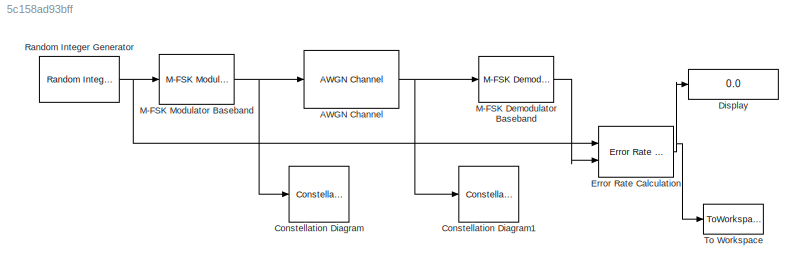
MODEL slx_5c158ad93bff
KIND model
CONFIG AbsTol = auto
CONFIG EnableMultiTasking = off
CONFIG FixedStep = auto
CONFIG MaxStep = auto
CONFIG MinStep = auto
CONFIG RelTol = 1e-3
CONFIG SampleTimeConstraint = Unconstrained
CONFIG Solver = VariableStepAuto
CONFIG SolverName = VariableStepAuto
CONFIG StartTime = 0.0
CONFIG StopTime = 10.0
BLOCK [Reference] AWGN Channel  REF=commchan3/AWGN
Channel
  Ports = [1, 1]
  SourceBlock = commchan3/AWGN\nChannel
  SourceProductBaseCode = CM
  SourceProductName = Communications System Toolbox
  SourceType = AWGN Channel
  UserDataPersistent = on
BLOCK [ConstellationDiagram] Constellation Diagram
  Ports = [1]
  ScopeSpecificationString = comm.scopes.ConstellationDiagramBlockCfg('CurrentConfiguration', extmgr.ConfigurationSet(extmgr.Configuration('Core','General UI',true),extmgr.Configuration('Core','Source UI',true),extmgr.Configuration('Sources','WiredSimulink',true),extmgr.Configuration('Visuals','Constellation',true,'AxesProperties',struct('Color',[0 0 0],'XColor',[0.686274509803922 0.686274509803922 0.686274509803922],'YColor'...<+711ch>
BLOCK [ConstellationDiagram] Constellation Diagram1
  Ports = [1]
  ScopeSpecificationString = comm.scopes.ConstellationDiagramBlockCfg('CurrentConfiguration', extmgr.ConfigurationSet(extmgr.Configuration('Core','General UI',true),extmgr.Configuration('Core','Source UI',true),extmgr.Configuration('Sources','WiredSimulink',true),extmgr.Configuration('Visuals','Constellation',true,'AxesProperties',struct('Color',[0 0 0],'XColor',[0.686274509803922 0.686274509803922 0.686274509803922],'YColor'...<+709ch>
BLOCK [Display] Display
  Decimation = 1
  Ports = [1]
BLOCK [Reference] Error Rate Calculation  REF=commsink2/Error Rate
Calculation
  Ports = [2, 1]
  SourceBlock = commsink2/Error Rate\nCalculation
  SourceProductBaseCode = CM
  SourceProductName = Communications System Toolbox
  SourceType = Error Rate Calculation
BLOCK [Reference] M-FSK Demodulator Baseband  REF=commdigbbndfm2/M-FSK
Demodulator
Baseband
  Ports = [1, 1]
  SourceBlock = commdigbbndfm2/M-FSK\nDemodulator\nBaseband
  SourceProductBaseCode = CM
  SourceProductName = Communications System Toolbox
  SourceType = M-FSK Demodulator Baseband
  UserDataPersistent = on
BLOCK [Reference] M-FSK Modulator Baseband  REF=commdigbbndfm2/M-FSK
Modulator
Baseband
  Ports = [1, 1]
  SourceBlock = commdigbbndfm2/M-FSK\nModulator\nBaseband
  SourceProductBaseCode = CM
  SourceProductName = Communications System Toolbox
  SourceType = M-FSK Modulator Baseband
  UserDataPersistent = on
BLOCK [Reference] Random Integer Generator  REF=commrandsrc3/Random Integer
Generator
  Ports = [0, 1]
  SourceBlock = commrandsrc3/Random Integer\nGenerator
  SourceProductBaseCode = CM
  SourceProductName = Communications System Toolbox
  SourceType = Random Integer Generator
BLOCK [ToWorkspace] To Workspace
  FixptAsFi = on
  MaxDataPoints = 2
  Ports = [1]
  SampleTime = -1
  Save2DSignal = 2-D array (concatenate along first dimension)
  VariableName = ber
NET AWGN Channel:1 -> Constellation Diagram1:1, M-FSK Demodulator Baseband:1
NET Error Rate Calculation:1 -> Display:1, To Workspace:1
LINE M-FSK Demodulator Baseband:1 -> Error Rate Calculation:2
NET M-FSK Modulator Baseband:1 -> AWGN Channel:1, Constellation Diagram:1
NET Random Integer Generator:1 -> Error Rate Calculation:1, M-FSK Modulator Baseband:1
note: NET lines group one-source signal fan-out (src -> all destinations, sorted); 1:1 wires keep LINE
